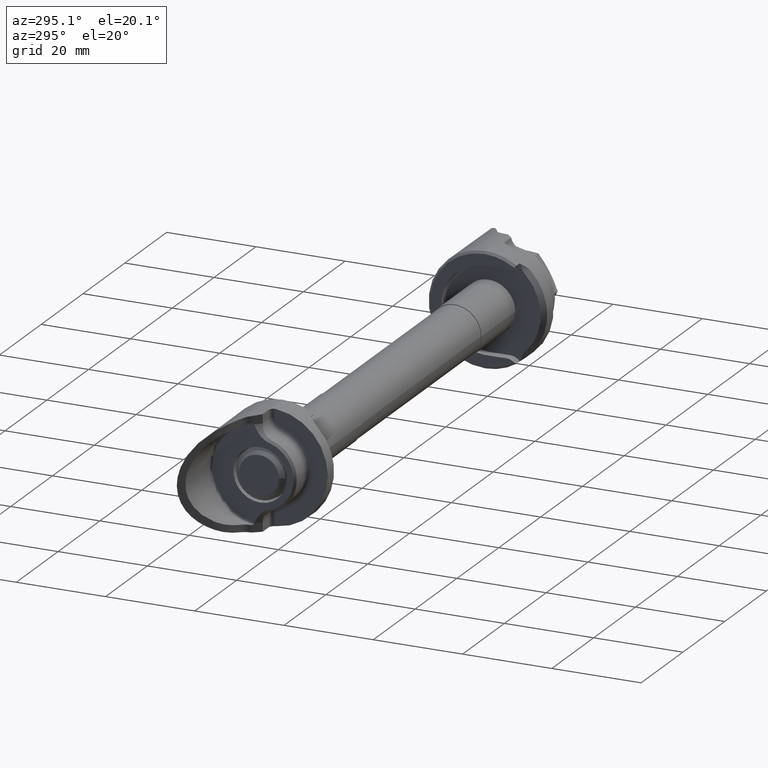
[diagram: clean part render]
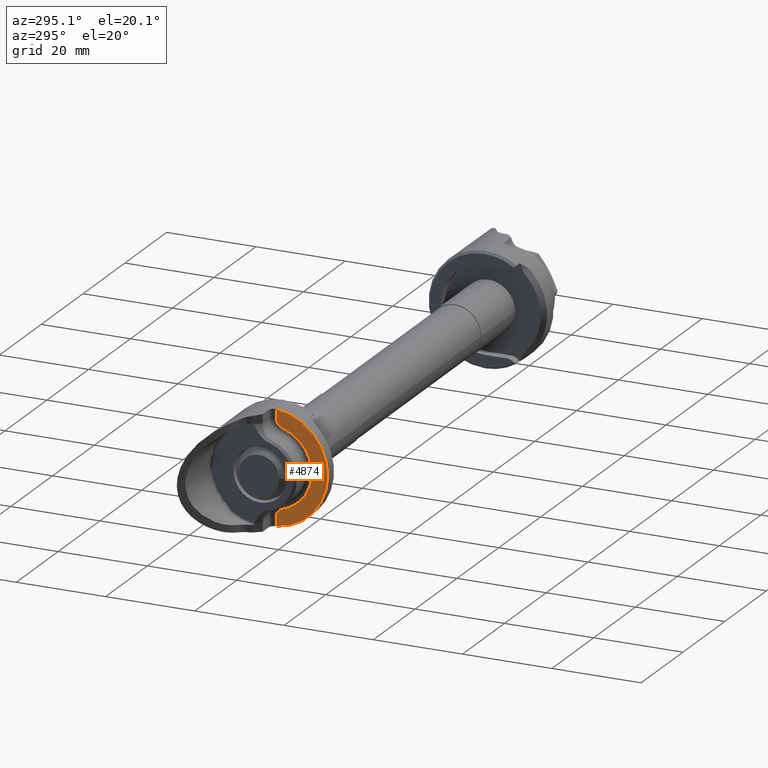
[diagram: same view with one face highlighted and labeled with its STEP entity id]
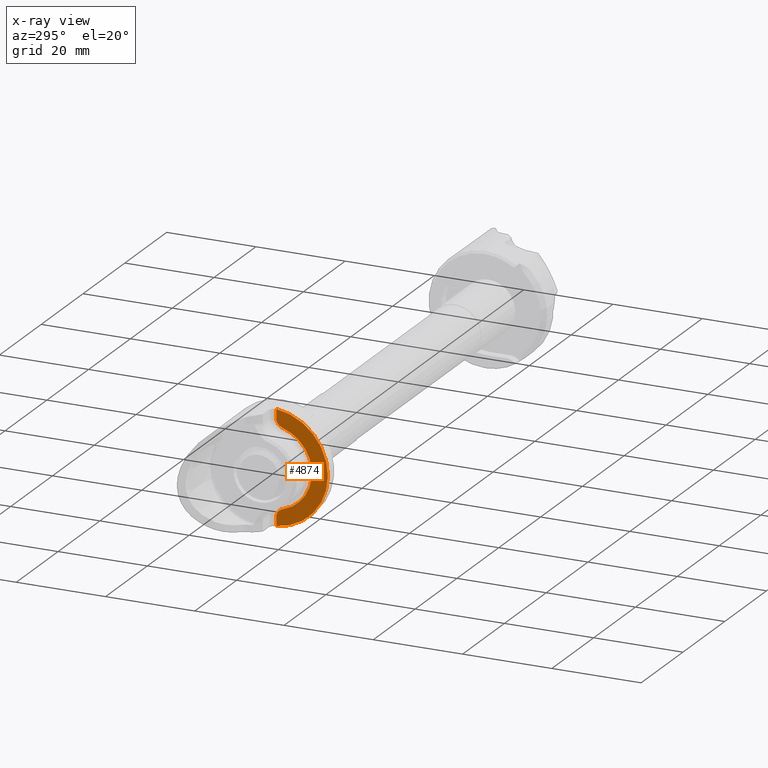
[diagram: x-ray of the same camera — body ghosted, the highlighted face saturated]
A machine part, auxiliary view. The second image highlights one B-rep face of the part: STEP entity #4874.
The next image is the same camera in x-ray: the body ghosted, the highlighted face saturated — about 0% of this face is hidden behind the body in this view.
In plain terms, the highlighted planar face has unit normal (1, 0, 0).
Its self-contained STEP definition (entity closure, byte-faithful):
#31 = ORIENTED_EDGE ( 'NONE', *, *, #4870, .T. ) ;
#46 = ORIENTED_EDGE ( 'NONE', *, *, #1792, .T. ) ;
#105 = DIRECTION ( 'NONE',  ( 1.000000000000000000, 0.0000000000000000000, 0.0000000000000000000 ) ) ;
#110 = AXIS2_PLACEMENT_3D ( 'NONE', #1097, #1380, #1349 ) ;
#142 = VECTOR ( 'NONE', #1876, 1000.000000000000000 ) ;
#191 = EDGE_CURVE ( 'NONE', #2993, #669, #3971, .T. ) ;
#436 = ORIENTED_EDGE ( 'NONE', *, *, #191, .T. ) ;
#491 = CARTESIAN_POINT ( 'NONE',  ( -6.000000000000000000, -1.142999999999998200, 10.71447618878309700 ) ) ;
#632 = CARTESIAN_POINT ( 'NONE',  ( -6.000000000000000000, -1.142999999999999100, 10.71447618878309700 ) ) ;
#669 = VERTEX_POINT ( 'NONE', #4082 ) ;
#739 = CARTESIAN_POINT ( 'NONE',  ( -6.000000000000001800, -1.142999999999998700, 12.64846042014600200 ) ) ;
#842 = CIRCLE ( 'NONE', #110, 9.143000000000000700 ) ;
#1061 = VERTEX_POINT ( 'NONE', #2098 ) ;
#1073 = CARTESIAN_POINT ( 'NONE',  ( -6.000000000000000000, 0.0000000000000000000, 0.0000000000000000000 ) ) ;
#1097 = CARTESIAN_POINT ( 'NONE',  ( -6.000000000000000000, 0.0000000000000000000, 0.0000000000000000000 ) ) ;
#1211 = CARTESIAN_POINT ( 'NONE',  ( -6.000000000000000000, -3.174999999999998000, 10.71447618878309700 ) ) ;
#1248 = CIRCLE ( 'NONE', #4318, 12.69999999999999900 ) ;
#1323 = ORIENTED_EDGE ( 'NONE', *, *, #3623, .T. ) ;
#1349 = DIRECTION ( 'NONE',  ( 0.0000000000000000000, 0.0000000000000000000, -1.000000000000000000 ) ) ;
#1380 = DIRECTION ( 'NONE',  ( 1.000000000000000000, 0.0000000000000000000, 0.0000000000000000000 ) ) ;
#1482 = DIRECTION ( 'NONE',  ( 1.000000000000000000, 0.0000000000000000000, -0.0000000000000000000 ) ) ;
#1712 = AXIS2_PLACEMENT_3D ( 'NONE', #1211, #4608, #5092 ) ;
#1792 = EDGE_CURVE ( 'NONE', #4230, #2302, #2216, .T. ) ;
#1876 = DIRECTION ( 'NONE',  ( -0.0000000000000000000, 2.170006834748168900E-016, -1.000000000000000000 ) ) ;
#2098 = CARTESIAN_POINT ( 'NONE',  ( -6.000000000000001800, -1.142999999999998700, -12.64846042014600200 ) ) ;
#2205 = FACE_OUTER_BOUND ( 'NONE', #4115, .T. ) ;
#2216 = LINE ( 'NONE', #632, #3888 ) ;
#2302 = VERTEX_POINT ( 'NONE', #491 ) ;
#2319 = CARTESIAN_POINT ( 'NONE',  ( -6.000000000000000000, -1.142999999999998700, -12.69999999999999900 ) ) ;
#2662 = CARTESIAN_POINT ( 'NONE',  ( -6.000000000000001800, 1.019903212331638800E-015, 0.0000000000000000000 ) ) ;
#2788 = ORIENTED_EDGE ( 'NONE', *, *, #4645, .F. ) ;
#2993 = VERTEX_POINT ( 'NONE', #3072 ) ;
#3072 = CARTESIAN_POINT ( 'NONE',  ( -6.000000000000000000, -2.597675615212526000, -8.766215283583344200 ) ) ;
#3094 = DIRECTION ( 'NONE',  ( 0.0000000000000000000, 0.0000000000000000000, 1.000000000000000000 ) ) ;
#3122 = VERTEX_POINT ( 'NONE', #4799 ) ;
#3177 = DIRECTION ( 'NONE',  ( 0.0000000000000000000, -2.170006834748168900E-016, -1.000000000000000000 ) ) ;
#3219 = EDGE_CURVE ( 'NONE', #3122, #2993, #842, .T. ) ;
#3393 = ORIENTED_EDGE ( 'NONE', *, *, #3219, .T. ) ;
#3423 = AXIS2_PLACEMENT_3D ( 'NONE', #4055, #4624, #3873 ) ;
#3616 = PLANE ( 'NONE',  #4891 ) ;
#3623 = EDGE_CURVE ( 'NONE', #2302, #3122, #4657, .T. ) ;
#3873 = DIRECTION ( 'NONE',  ( 0.0000000000000000000, -1.707404996040165200E-015, -1.000000000000000000 ) ) ;
#3888 = VECTOR ( 'NONE', #3177, 1000.000000000000000 ) ;
#3971 = CIRCLE ( 'NONE', #3423, 2.031999999999999100 ) ;
#4055 = CARTESIAN_POINT ( 'NONE',  ( -6.000000000000000000, -3.174999999999998000, -10.71447618878309700 ) ) ;
#4082 = CARTESIAN_POINT ( 'NONE',  ( -6.000000000000000000, -1.142999999999998200, -10.71447618878309700 ) ) ;
#4115 = EDGE_LOOP ( 'NONE', ( #436, #31, #2788, #46, #1323, #3393 ) ) ;
#4147 = LINE ( 'NONE', #2319, #142 ) ;
#4230 = VERTEX_POINT ( 'NONE', #739 ) ;
#4318 = AXIS2_PLACEMENT_3D ( 'NONE', #2662, #105, #3094 ) ;
#4467 = DIRECTION ( 'NONE',  ( 0.0000000000000000000, 0.0000000000000000000, 1.000000000000000000 ) ) ;
#4608 = DIRECTION ( 'NONE',  ( -1.000000000000000000, -0.0000000000000000000, -0.0000000000000000000 ) ) ;
#4624 = DIRECTION ( 'NONE',  ( -1.000000000000000000, -0.0000000000000000000, -0.0000000000000000000 ) ) ;
#4645 = EDGE_CURVE ( 'NONE', #4230, #1061, #1248, .T. ) ;
#4657 = CIRCLE ( 'NONE', #1712, 2.031999999999999100 ) ;
#4799 = CARTESIAN_POINT ( 'NONE',  ( -6.000000000000000000, -2.597675615212526400, 8.766215283583346000 ) ) ;
#4870 = EDGE_CURVE ( 'NONE', #669, #1061, #4147, .T. ) ;
#4874 = ADVANCED_FACE ( 'NONE', ( #2205 ), #3616, .F. ) ;
#4891 = AXIS2_PLACEMENT_3D ( 'NONE', #1073, #1482, #4467 ) ;
#5092 = DIRECTION ( 'NONE',  ( 0.0000000000000000000, -1.707404996040165200E-015, -1.000000000000000000 ) ) ;